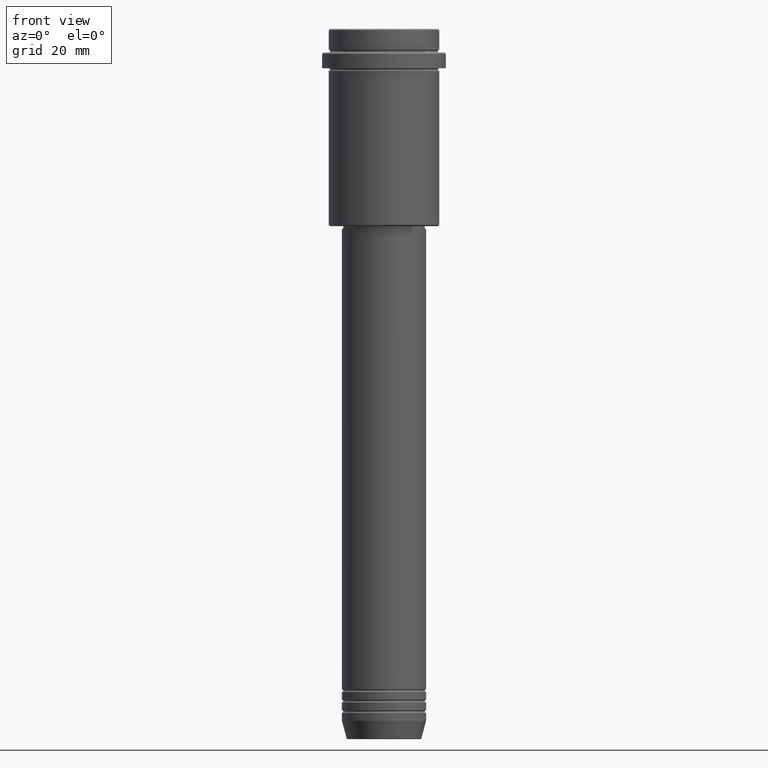
[diagram: clean part render]
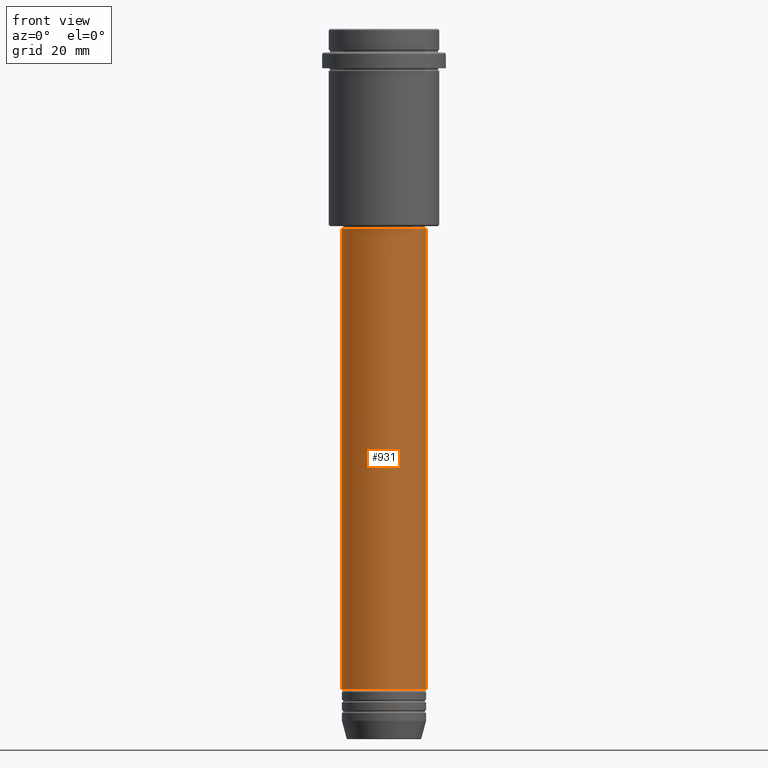
[diagram: same view with one face highlighted and labeled with its STEP entity id]
A machine part, front view. The second image highlights one B-rep face of the part: STEP entity #931.
In plain terms, the highlighted cylindrical surface (partial cylindrical patch) has radius 16 mm, axis along (-0, -0, 1).
Its self-contained STEP definition (entity closure, byte-faithful):
#63 = CARTESIAN_POINT ( 'NONE',  ( 0.000000000000000000, 0.000000000000000000, -76.00000000000001421 ) ) ;
#74 = ORIENTED_EDGE ( 'NONE', *, *, #694, .F. ) ;
#94 = VECTOR ( 'NONE', #358, 1000.000000000000000 ) ;
#116 = EDGE_CURVE ( 'NONE', #1148, #967, #1228, .T. ) ;
#117 = CARTESIAN_POINT ( 'NONE',  ( 16.00000000000000000, 0.000000000000000000, -250.9999999999998863 ) ) ;
#120 = AXIS2_PLACEMENT_3D ( 'NONE', #63, #1039, #379 ) ;
#127 = EDGE_CURVE ( 'NONE', #442, #1158, #353, .T. ) ;
#243 = FACE_OUTER_BOUND ( 'NONE', #1363, .T. ) ;
#348 = CARTESIAN_POINT ( 'NONE',  ( 0.000000000000000000, 0.000000000000000000, -250.9999999999998863 ) ) ;
#353 = LINE ( 'NONE', #913, #94 ) ;
#358 = DIRECTION ( 'NONE',  ( -0.000000000000000000, -0.000000000000000000, 1.000000000000000000 ) ) ;
#379 = DIRECTION ( 'NONE',  ( 1.000000000000000000, 0.000000000000000000, 0.000000000000000000 ) ) ;
#416 = ORIENTED_EDGE ( 'NONE', *, *, #127, .T. ) ;
#442 = VERTEX_POINT ( 'NONE', #117 ) ;
#522 = CIRCLE ( 'NONE', #120, 16.00000000000000355 ) ;
#571 = AXIS2_PLACEMENT_3D ( 'NONE', #348, #905, #1346 ) ;
#572 = EDGE_CURVE ( 'NONE', #1148, #442, #955, .T. ) ;
#575 = DIRECTION ( 'NONE',  ( -0.000000000000000000, -0.000000000000000000, 1.000000000000000000 ) ) ;
#628 = CARTESIAN_POINT ( 'NONE',  ( 16.00000000000000355, 0.000000000000000000, -76.00000000000001421 ) ) ;
#694 = EDGE_CURVE ( 'NONE', #967, #1158, #522, .T. ) ;
#728 = ORIENTED_EDGE ( 'NONE', *, *, #572, .T. ) ;
#776 = DIRECTION ( 'NONE',  ( -0.000000000000000000, -0.000000000000000000, 1.000000000000000000 ) ) ;
#785 = CARTESIAN_POINT ( 'NONE',  ( -16.00000000000000000, 1.959434878635765131E-15, 0.000000000000000000 ) ) ;
#818 = VECTOR ( 'NONE', #776, 1000.000000000000000 ) ;
#883 = CARTESIAN_POINT ( 'NONE',  ( 0.000000000000000000, 0.000000000000000000, 0.000000000000000000 ) ) ;
#905 = DIRECTION ( 'NONE',  ( -0.000000000000000000, -0.000000000000000000, 1.000000000000000000 ) ) ;
#913 = CARTESIAN_POINT ( 'NONE',  ( 16.00000000000000000, 0.000000000000000000, 0.000000000000000000 ) ) ;
#931 = ADVANCED_FACE ( 'NONE', ( #243 ), #1130, .T. ) ;
#955 = CIRCLE ( 'NONE', #571, 16.00000000000000000 ) ;
#961 = CARTESIAN_POINT ( 'NONE',  ( -16.00000000000000000, 1.959434878635765131E-15, -250.9999999999998863 ) ) ;
#967 = VERTEX_POINT ( 'NONE', #1225 ) ;
#1039 = DIRECTION ( 'NONE',  ( -0.000000000000000000, -0.000000000000000000, 1.000000000000000000 ) ) ;
#1093 = ORIENTED_EDGE ( 'NONE', *, *, #116, .F. ) ;
#1120 = DIRECTION ( 'NONE',  ( 1.000000000000000000, 0.000000000000000000, 0.000000000000000000 ) ) ;
#1130 = CYLINDRICAL_SURFACE ( 'NONE', #1147, 16.00000000000000000 ) ;
#1147 = AXIS2_PLACEMENT_3D ( 'NONE', #883, #575, #1120 ) ;
#1148 = VERTEX_POINT ( 'NONE', #961 ) ;
#1158 = VERTEX_POINT ( 'NONE', #628 ) ;
#1225 = CARTESIAN_POINT ( 'NONE',  ( -16.00000000000000355, 1.959434878635765526E-15, -76.00000000000001421 ) ) ;
#1228 = LINE ( 'NONE', #785, #818 ) ;
#1346 = DIRECTION ( 'NONE',  ( 1.000000000000000000, 0.000000000000000000, 0.000000000000000000 ) ) ;
#1363 = EDGE_LOOP ( 'NONE', ( #1093, #728, #416, #74 ) ) ;